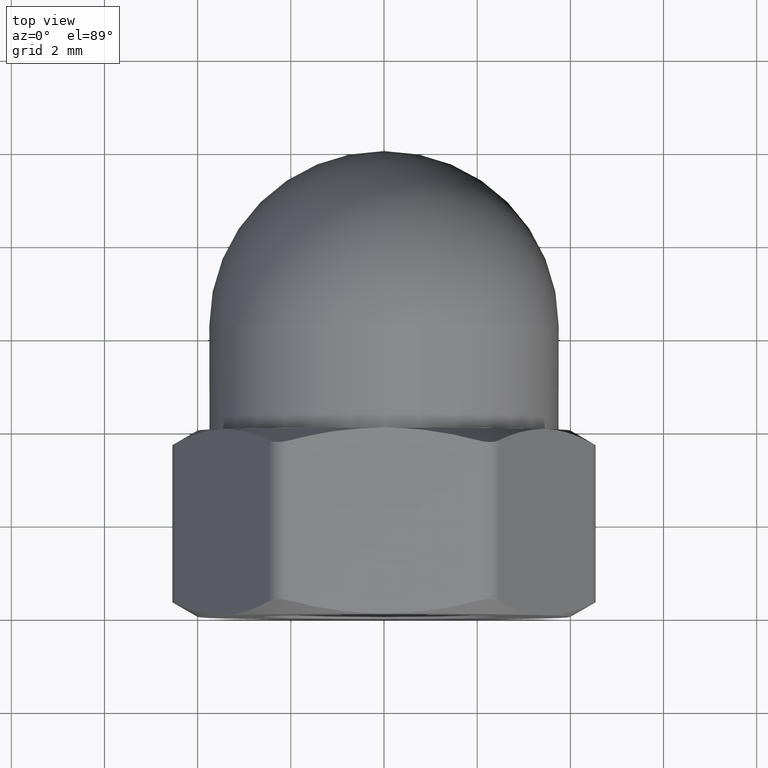
[diagram: clean part render]
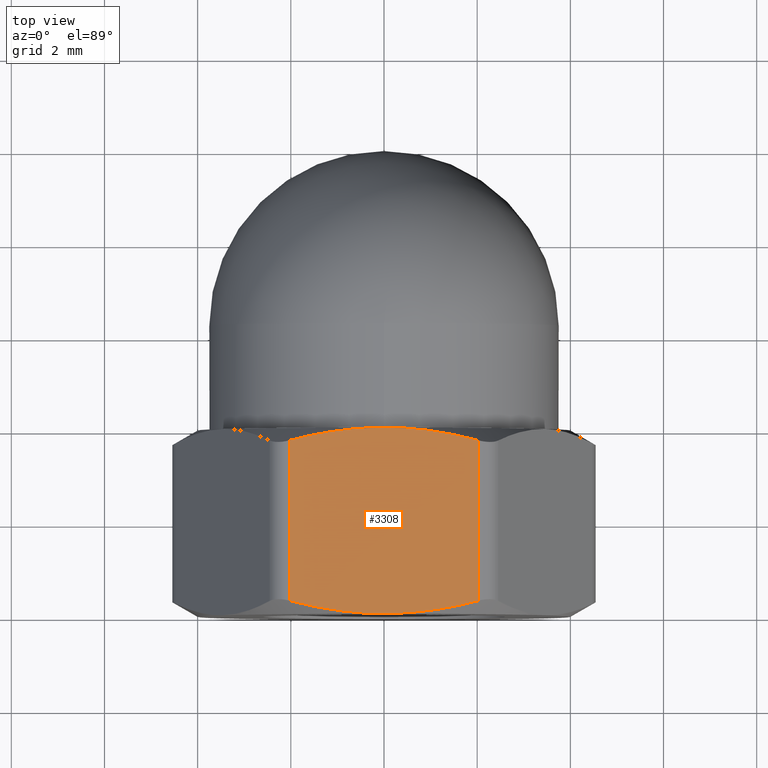
[diagram: same view with one face highlighted and labeled with its STEP entity id]
A machine part, top view. The second image highlights one B-rep face of the part: STEP entity #3308.
In plain terms, the highlighted planar face has unit normal (0, 0, -1).
Its self-contained STEP definition (entity closure, byte-faithful):
#70 = CARTESIAN_POINT ( 'NONE',  ( -2.020725942163795500, 3.722038627381816700, 4.000000000000000000 ) ) ;
#403 = CARTESIAN_POINT ( 'NONE',  ( -1.689722676344569200, 0.1917903652353601100, 4.000000000000000000 ) ) ;
#860 = CARTESIAN_POINT ( 'NONE',  ( -2.309401076758501600, 4.000000000000000000, 4.000000000000000000 ) ) ;
#891 = ORIENTED_EDGE ( 'NONE', *, *, #12101, .F. ) ;
#978 = LINE ( 'NONE', #14398, #11897 ) ;
#1344 = CARTESIAN_POINT ( 'NONE',  ( 1.360912241211186500, 3.877328334183479000, 4.000000000000000000 ) ) ;
#1501 = CARTESIAN_POINT ( 'NONE',  ( 0.3403483252378746700, 3.999999999999999100, 4.000000000000000000 ) ) ;
#1897 = ORIENTED_EDGE ( 'NONE', *, *, #15569, .F. ) ;
#1954 = VERTEX_POINT ( 'NONE', #14991 ) ;
#2113 = CARTESIAN_POINT ( 'NONE',  ( 1.360912241211187100, 0.1226716658165212800, 4.000000000000000000 ) ) ;
#2769 = VECTOR ( 'NONE', #5784, 1000.000000000000000 ) ;
#3175 = CARTESIAN_POINT ( 'NONE',  ( 0.0000000000000000000, 0.0000000000000000000, 4.000000000000000000 ) ) ;
#3308 = ADVANCED_FACE ( 'NONE', ( #14521 ), #15518, .F. ) ;
#3655 = CARTESIAN_POINT ( 'NONE',  ( -1.352887352662103200, 3.878785010602817400, 4.000000000000000000 ) ) ;
#3770 = CARTESIAN_POINT ( 'NONE',  ( -2.020725942163795500, 0.2779613726181834900, 4.000000000000000000 ) ) ;
#3977 = EDGE_LOOP ( 'NONE', ( #7964, #11735, #15466, #891, #7729, #1897 ) ) ;
#3980 = VERTEX_POINT ( 'NONE', #5515 ) ;
#4178 = EDGE_CURVE ( 'NONE', #3980, #8259, #6908, .T. ) ;
#4274 = EDGE_CURVE ( 'NONE', #1954, #8190, #10921, .T. ) ;
#4280 = B_SPLINE_CURVE_WITH_KNOTS ( 'NONE', 3,
 ( #6010, #13985, #2113, #11366, #12692, #3175 ),
 .UNSPECIFIED., .F., .F.,
 ( 4, 2, 4 ),
 ( 0.001992220213491112700, 0.003008387476956225800, 0.004024554740421338500 ),
 .UNSPECIFIED. ) ;
#5042 = CARTESIAN_POINT ( 'NONE',  ( 0.0000000000000000000, 0.0000000000000000000, 4.000000000000000000 ) ) ;
#5083 = LINE ( 'NONE', #9051, #2769 ) ;
#5515 = CARTESIAN_POINT ( 'NONE',  ( 0.0000000000000000000, 0.0000000000000000000, 4.000000000000000000 ) ) ;
#5672 = CARTESIAN_POINT ( 'NONE',  ( -0.3405059322954796500, 9.035018104045872900E-018, 4.000000000000000900 ) ) ;
#5784 = DIRECTION ( 'NONE',  ( 0.0000000000000000000, -1.000000000000000000, 0.0000000000000000000 ) ) ;
#5866 = DIRECTION ( 'NONE',  ( -1.000000000000000000, 0.0000000000000000000, -0.0000000000000000000 ) ) ;
#6010 = CARTESIAN_POINT ( 'NONE',  ( 2.020725942163692900, 0.2779613726181644500, 4.000000000000000000 ) ) ;
#6098 = CARTESIAN_POINT ( 'NONE',  ( 2.020725942163692900, 0.2779613726181644500, 4.000000000000000000 ) ) ;
#6185 = CARTESIAN_POINT ( 'NONE',  ( 0.0000000000000000000, 4.000000000000000000, 4.000000000000000000 ) ) ;
#6908 = B_SPLINE_CURVE_WITH_KNOTS ( 'NONE', 3,
 ( #5042, #5672, #11614, #13813, #403, #7470 ),
 .UNSPECIFIED., .F., .F.,
 ( 4, 2, 4 ),
 ( 0.004024554740421338500, 0.005041192566308981400, 0.006057830392196624300 ),
 .UNSPECIFIED. ) ;
#7470 = CARTESIAN_POINT ( 'NONE',  ( -2.020725942163795500, 0.2779613726181834900, 4.000000000000000000 ) ) ;
#7729 = ORIENTED_EDGE ( 'NONE', *, *, #13919, .T. ) ;
#7964 = ORIENTED_EDGE ( 'NONE', *, *, #4274, .F. ) ;
#8190 = VERTEX_POINT ( 'NONE', #8658 ) ;
#8259 = VERTEX_POINT ( 'NONE', #3770 ) ;
#8658 = CARTESIAN_POINT ( 'NONE',  ( 0.0000000000000000000, 4.000000000000000000, 4.000000000000000000 ) ) ;
#8909 = CARTESIAN_POINT ( 'NONE',  ( 0.6851679467075250100, 3.973999151147255200, 4.000000000000000000 ) ) ;
#9051 = CARTESIAN_POINT ( 'NONE',  ( -2.020725942163688100, 4.000000000000000000, 4.000000000000000000 ) ) ;
#9459 = DIRECTION ( 'NONE',  ( 0.0000000000000000000, 0.0000000000000000000, -1.000000000000000000 ) ) ;
#9955 = VERTEX_POINT ( 'NONE', #14440 ) ;
#9993 = CARTESIAN_POINT ( 'NONE',  ( 2.020725942163692900, 3.722038627381835800, 4.000000000000000000 ) ) ;
#10382 = EDGE_CURVE ( 'NONE', #1954, #8259, #5083, .T. ) ;
#10921 = B_SPLINE_CURVE_WITH_KNOTS ( 'NONE', 3,
 ( #70, #11037, #3655, #12246, #11146, #6185 ),
 .UNSPECIFIED., .F., .F.,
 ( 4, 2, 4 ),
 ( 0.004418079740299328900, 0.005437323299473340200, 0.006456566858647351500 ),
 .UNSPECIFIED. ) ;
#11037 = CARTESIAN_POINT ( 'NONE',  ( -1.689722676344570300, 3.808209634764640100, 4.000000000000000000 ) ) ;
#11146 = CARTESIAN_POINT ( 'NONE',  ( -0.3405059322954798200, 4.000000000000000000, 4.000000000000000000 ) ) ;
#11303 = CARTESIAN_POINT ( 'NONE',  ( 0.0000000000000000000, 4.000000000000000000, 4.000000000000000000 ) ) ;
#11366 = CARTESIAN_POINT ( 'NONE',  ( 0.6851679467075244600, 0.02600084885274462500, 4.000000000000000000 ) ) ;
#11614 = CARTESIAN_POINT ( 'NONE',  ( -0.6790938342380391500, 0.02544707175633452800, 4.000000000000000900 ) ) ;
#11735 = ORIENTED_EDGE ( 'NONE', *, *, #10382, .T. ) ;
#11897 = VECTOR ( 'NONE', #15625, 1000.000000000000000 ) ;
#12101 = EDGE_CURVE ( 'NONE', #15206, #3980, #4280, .T. ) ;
#12246 = CARTESIAN_POINT ( 'NONE',  ( -0.6790938342380392600, 3.974552928243666000, 4.000000000000000000 ) ) ;
#12571 = CARTESIAN_POINT ( 'NONE',  ( 1.692910658353542900, 3.807379698478194500, 4.000000000000000000 ) ) ;
#12692 = CARTESIAN_POINT ( 'NONE',  ( 0.3403483252378750600, -3.811648262644350300E-017, 4.000000000000000000 ) ) ;
#13566 = B_SPLINE_CURVE_WITH_KNOTS ( 'NONE', 3,
 ( #11303, #1501, #8909, #1344, #12571, #9993 ),
 .UNSPECIFIED., .F., .F.,
 ( 4, 2, 4 ),
 ( 0.006456566858647351500, 0.007475338649305437300, 0.008494110439963523100 ),
 .UNSPECIFIED. ) ;
#13813 = CARTESIAN_POINT ( 'NONE',  ( -1.352887352662102400, 0.1212149893971830200, 4.000000000000000900 ) ) ;
#13919 = EDGE_CURVE ( 'NONE', #15206, #9955, #978, .T. ) ;
#13985 = CARTESIAN_POINT ( 'NONE',  ( 1.692910658353542700, 0.1926203015218050400, 4.000000000000000000 ) ) ;
#14398 = CARTESIAN_POINT ( 'NONE',  ( 2.020725942163692500, 4.000000000000000000, 4.000000000000000000 ) ) ;
#14440 = CARTESIAN_POINT ( 'NONE',  ( 2.020725942163692900, 3.722038627381835800, 4.000000000000000000 ) ) ;
#14521 = FACE_OUTER_BOUND ( 'NONE', #3977, .T. ) ;
#14559 = AXIS2_PLACEMENT_3D ( 'NONE', #860, #9459, #5866 ) ;
#14991 = CARTESIAN_POINT ( 'NONE',  ( -2.020725942163795500, 3.722038627381816700, 4.000000000000000000 ) ) ;
#15206 = VERTEX_POINT ( 'NONE', #6098 ) ;
#15466 = ORIENTED_EDGE ( 'NONE', *, *, #4178, .F. ) ;
#15518 = PLANE ( 'NONE',  #14559 ) ;
#15569 = EDGE_CURVE ( 'NONE', #8190, #9955, #13566, .T. ) ;
#15625 = DIRECTION ( 'NONE',  ( -0.0000000000000000000, 1.000000000000000000, -0.0000000000000000000 ) ) ;